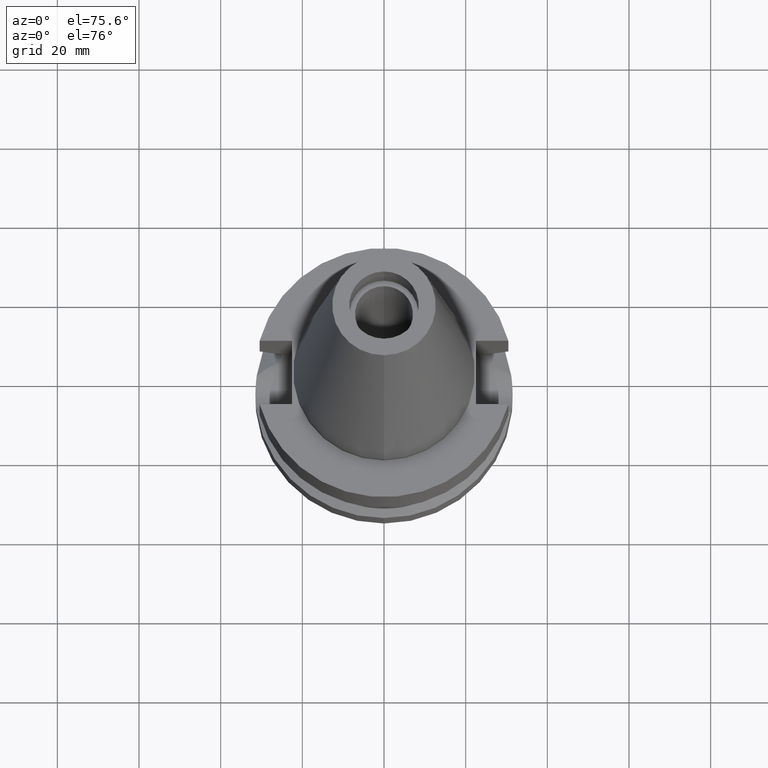
[diagram: clean part render]
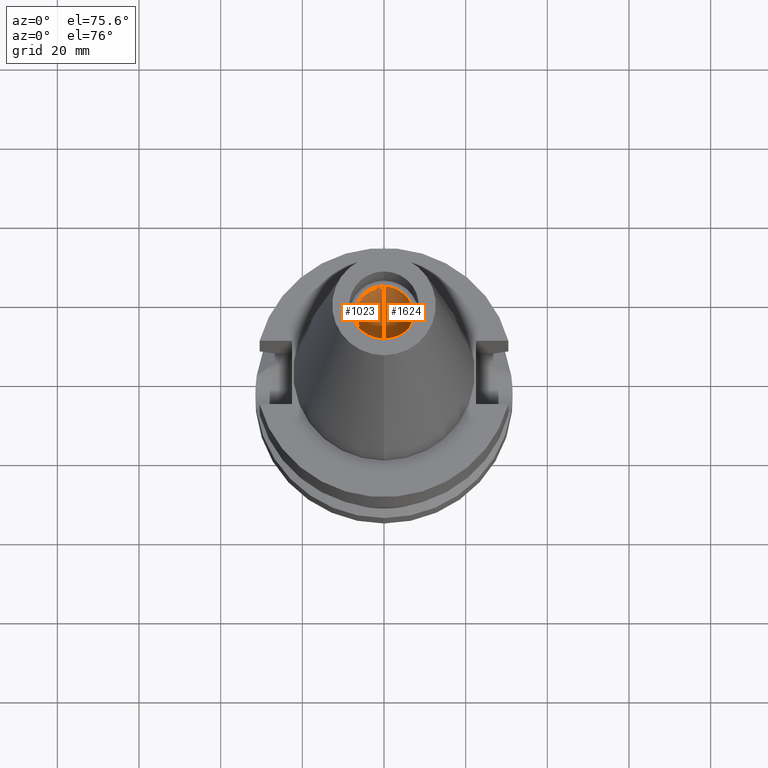
[diagram: same view with one multi-face feature highlighted, each face labeled with its STEP entity id]
A machine part, auxiliary view. The highlighted faces form ONE feature: a constant-radius fillet chain: 2 tangent blend faces with common blend radius 7.1 mm. The faces share edges in the B-rep.
Their STEP definitions:
[1] entity #1023 (Cylinder):
#65 = VERTEX_POINT ( 'NONE', #1875 ) ;
#286 = CARTESIAN_POINT ( 'NONE',  ( 0.0000000000000000000, 0.0000000000000000000, 0.0000000000000000000 ) ) ;
#319 = LINE ( 'NONE', #562, #720 ) ;
#340 = DIRECTION ( 'NONE',  ( 0.0000000000000000000, -1.000000000000000000, 0.0000000000000000000 ) ) ;
#417 = DIRECTION ( 'NONE',  ( 0.0000000000000000000, 1.000000000000000000, 0.0000000000000000000 ) ) ;
#533 = FACE_OUTER_BOUND ( 'NONE', #2637, .T. ) ;
#562 = CARTESIAN_POINT ( 'NONE',  ( 0.0000000000000000000, -7.100000000000000533, 0.0000000000000000000 ) ) ;
#563 = CARTESIAN_POINT ( 'NONE',  ( 0.0000000000000000000, 0.0000000000000000000, 56.39999999999999858 ) ) ;
#572 = AXIS2_PLACEMENT_3D ( 'NONE', #286, #1255, #2214 ) ;
#640 = DIRECTION ( 'NONE',  ( 0.0000000000000000000, 0.0000000000000000000, 1.000000000000000000 ) ) ;
#675 = CARTESIAN_POINT ( 'NONE',  ( 0.0000000000000000000, 7.100000000000000533, 0.0000000000000000000 ) ) ;
#720 = VECTOR ( 'NONE', #2201, 1000.000000000000000 ) ;
#930 = ORIENTED_EDGE ( 'NONE', *, *, #1586, .T. ) ;
#1011 = CARTESIAN_POINT ( 'NONE',  ( 0.0000000000000000000, -7.100000000000000533, 0.0000000000000000000 ) ) ;
#1023 = ADVANCED_FACE ( 'NONE', ( #533 ), #2709, .F. ) ;
#1255 = DIRECTION ( 'NONE',  ( 0.0000000000000000000, 0.0000000000000000000, -1.000000000000000000 ) ) ;
#1586 = EDGE_CURVE ( 'NONE', #2938, #65, #2554, .T. ) ;
#1598 = DIRECTION ( 'NONE',  ( 0.0000000000000000000, 0.0000000000000000000, 1.000000000000000000 ) ) ;
#1709 = CIRCLE ( 'NONE', #2412, 7.100000000000000533 ) ;
#1875 = CARTESIAN_POINT ( 'NONE',  ( 0.0000000000000000000, 7.100000000000000533, 56.39999999999999858 ) ) ;
#1879 = EDGE_CURVE ( 'NONE', #65, #2338, #1709, .T. ) ;
#1935 = CIRCLE ( 'NONE', #572, 7.100000000000000533 ) ;
#2012 = CARTESIAN_POINT ( 'NONE',  ( 0.0000000000000000000, 0.0000000000000000000, 0.0000000000000000000 ) ) ;
#2052 = EDGE_CURVE ( 'NONE', #2265, #2938, #1935, .T. ) ;
#2201 = DIRECTION ( 'NONE',  ( 0.0000000000000000000, 0.0000000000000000000, 1.000000000000000000 ) ) ;
#2214 = DIRECTION ( 'NONE',  ( 0.0000000000000000000, -1.000000000000000000, 0.0000000000000000000 ) ) ;
#2222 = DIRECTION ( 'NONE',  ( 0.0000000000000000000, 0.0000000000000000000, -1.000000000000000000 ) ) ;
#2236 = ORIENTED_EDGE ( 'NONE', *, *, #1879, .T. ) ;
#2265 = VERTEX_POINT ( 'NONE', #1011 ) ;
#2338 = VERTEX_POINT ( 'NONE', #2907 ) ;
#2412 = AXIS2_PLACEMENT_3D ( 'NONE', #563, #1598, #417 ) ;
#2468 = CARTESIAN_POINT ( 'NONE',  ( 0.0000000000000000000, 7.100000000000000533, 0.0000000000000000000 ) ) ;
#2554 = LINE ( 'NONE', #675, #2766 ) ;
#2637 = EDGE_LOOP ( 'NONE', ( #2236, #2877, #3077, #930 ) ) ;
#2673 = AXIS2_PLACEMENT_3D ( 'NONE', #2012, #2222, #340 ) ;
#2709 = CYLINDRICAL_SURFACE ( 'NONE', #2673, 7.100000000000000533 ) ;
#2766 = VECTOR ( 'NONE', #640, 1000.000000000000000 ) ;
#2877 = ORIENTED_EDGE ( 'NONE', *, *, #3032, .F. ) ;
#2907 = CARTESIAN_POINT ( 'NONE',  ( 0.0000000000000000000, -7.100000000000000533, 56.39999999999999858 ) ) ;
#2938 = VERTEX_POINT ( 'NONE', #2468 ) ;
#3032 = EDGE_CURVE ( 'NONE', #2265, #2338, #319, .T. ) ;
#3077 = ORIENTED_EDGE ( 'NONE', *, *, #2052, .T. ) ;
[2] entity #1624 (Cylinder):
#65 = VERTEX_POINT ( 'NONE', #1875 ) ;
#106 = ORIENTED_EDGE ( 'NONE', *, *, #1586, .F. ) ;
#118 = CARTESIAN_POINT ( 'NONE',  ( 0.0000000000000000000, 0.0000000000000000000, 0.0000000000000000000 ) ) ;
#213 = FACE_OUTER_BOUND ( 'NONE', #591, .T. ) ;
#272 = CARTESIAN_POINT ( 'NONE',  ( 0.0000000000000000000, 0.0000000000000000000, 56.39999999999999858 ) ) ;
#319 = LINE ( 'NONE', #562, #720 ) ;
#400 = DIRECTION ( 'NONE',  ( 0.0000000000000000000, 0.0000000000000000000, -1.000000000000000000 ) ) ;
#457 = DIRECTION ( 'NONE',  ( 0.0000000000000000000, -1.000000000000000000, 0.0000000000000000000 ) ) ;
#562 = CARTESIAN_POINT ( 'NONE',  ( 0.0000000000000000000, -7.100000000000000533, 0.0000000000000000000 ) ) ;
#591 = EDGE_LOOP ( 'NONE', ( #1146, #2715, #1526, #106 ) ) ;
#640 = DIRECTION ( 'NONE',  ( 0.0000000000000000000, 0.0000000000000000000, 1.000000000000000000 ) ) ;
#675 = CARTESIAN_POINT ( 'NONE',  ( 0.0000000000000000000, 7.100000000000000533, 0.0000000000000000000 ) ) ;
#720 = VECTOR ( 'NONE', #2201, 1000.000000000000000 ) ;
#770 = AXIS2_PLACEMENT_3D ( 'NONE', #272, #1729, #812 ) ;
#812 = DIRECTION ( 'NONE',  ( 0.0000000000000000000, -1.000000000000000000, 0.0000000000000000000 ) ) ;
#920 = CARTESIAN_POINT ( 'NONE',  ( 0.0000000000000000000, 0.0000000000000000000, 0.0000000000000000000 ) ) ;
#1011 = CARTESIAN_POINT ( 'NONE',  ( 0.0000000000000000000, -7.100000000000000533, 0.0000000000000000000 ) ) ;
#1080 = DIRECTION ( 'NONE',  ( 0.0000000000000000000, 1.000000000000000000, 0.0000000000000000000 ) ) ;
#1146 = ORIENTED_EDGE ( 'NONE', *, *, #1932, .T. ) ;
#1423 = CYLINDRICAL_SURFACE ( 'NONE', #1603, 7.100000000000000533 ) ;
#1526 = ORIENTED_EDGE ( 'NONE', *, *, #2965, .T. ) ;
#1586 = EDGE_CURVE ( 'NONE', #2938, #65, #2554, .T. ) ;
#1594 = DIRECTION ( 'NONE',  ( 0.0000000000000000000, 0.0000000000000000000, -1.000000000000000000 ) ) ;
#1603 = AXIS2_PLACEMENT_3D ( 'NONE', #920, #1594, #457 ) ;
#1624 = ADVANCED_FACE ( 'NONE', ( #213 ), #1423, .F. ) ;
#1729 = DIRECTION ( 'NONE',  ( 0.0000000000000000000, 0.0000000000000000000, 1.000000000000000000 ) ) ;
#1875 = CARTESIAN_POINT ( 'NONE',  ( 0.0000000000000000000, 7.100000000000000533, 56.39999999999999858 ) ) ;
#1932 = EDGE_CURVE ( 'NONE', #2938, #2265, #2514, .T. ) ;
#2201 = DIRECTION ( 'NONE',  ( 0.0000000000000000000, 0.0000000000000000000, 1.000000000000000000 ) ) ;
#2265 = VERTEX_POINT ( 'NONE', #1011 ) ;
#2338 = VERTEX_POINT ( 'NONE', #2907 ) ;
#2468 = CARTESIAN_POINT ( 'NONE',  ( 0.0000000000000000000, 7.100000000000000533, 0.0000000000000000000 ) ) ;
#2514 = CIRCLE ( 'NONE', #2866, 7.100000000000000533 ) ;
#2554 = LINE ( 'NONE', #675, #2766 ) ;
#2688 = CIRCLE ( 'NONE', #770, 7.100000000000000533 ) ;
#2715 = ORIENTED_EDGE ( 'NONE', *, *, #3032, .T. ) ;
#2766 = VECTOR ( 'NONE', #640, 1000.000000000000000 ) ;
#2866 = AXIS2_PLACEMENT_3D ( 'NONE', #118, #400, #1080 ) ;
#2907 = CARTESIAN_POINT ( 'NONE',  ( 0.0000000000000000000, -7.100000000000000533, 56.39999999999999858 ) ) ;
#2938 = VERTEX_POINT ( 'NONE', #2468 ) ;
#2965 = EDGE_CURVE ( 'NONE', #2338, #65, #2688, .T. ) ;
#3032 = EDGE_CURVE ( 'NONE', #2265, #2338, #319, .T. ) ;